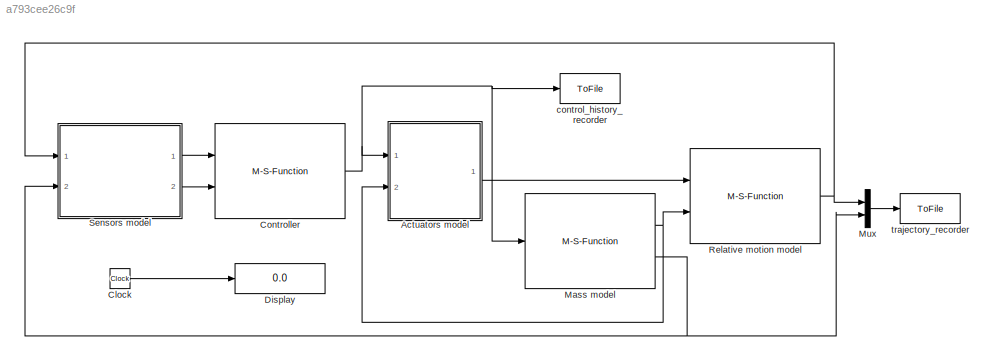
MODEL slx_a793cee26c9f
KIND model
CONFIG AbsTol = auto
CONFIG FixedStep = auto
CONFIG MaxStep = auto
CONFIG MinStep = auto
CONFIG RelTol = 1e-3
CONFIG SampleTimeConstraint = Unconstrained
CONFIG Solver = ode45
CONFIG SolverMode = Auto
CONFIG SolverName = ode45
CONFIG StartTime = 0.0
CONFIG StopTime = 36e4
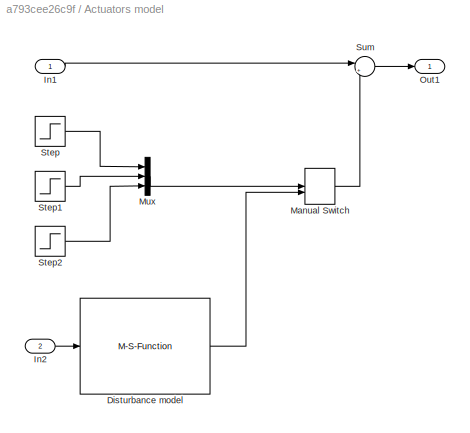
BLOCK [SubSystem] Actuators model
  Ports = [2, 1]
  RequestExecContextInheritance = off
BLOCK [M-S-Function] Actuators model/Disturbance model
  FunctionName = DiscInDisturbanceSFcn
  Parameters = SimulationScenario
  Ports = [1, 1]
BLOCK [Inport] Actuators model/In1
  IconDisplay = Port number
BLOCK [Inport] Actuators model/In2
  IconDisplay = Port number
  Port = 2
BLOCK [ManualSwitch] Actuators model/Manual Switch
BLOCK [Mux] Actuators model/Mux
  DisplayOption = bar
  Inputs = 3
  Ports = [3, 1]
BLOCK [Outport] Actuators model/Out1
  IconDisplay = Port number
BLOCK [Step] Actuators model/Step
  After = StepDist
  SampleTime = 0
  Time = StepTime
BLOCK [Step] Actuators model/Step1
  After = StepDist
  SampleTime = 0
  Time = StepTime
BLOCK [Step] Actuators model/Step2
  After = StepDist
  SampleTime = 0
  Time = StepTime
BLOCK [Sum] Actuators model/Sum
  IconShape = round
  InputSameDT = off
  Inputs = |++
  OutDataTypeStr = Inherit: Inherit via internal rule
  Ports = [2, 1]
  SaturateOnIntegerOverflow = off
BLOCK [Clock] Clock
BLOCK [M-S-Function] Controller
  FunctionName = DiscControllerSFcn
  Parameters = SimulationScenario
  Ports = [2, 1]
BLOCK [Display] Display
  Decimation = 1
  Ports = [1]
BLOCK [M-S-Function] Mass model
  FunctionName = ContMassSFcn
  Parameters = SimulationScenario
  Ports = [1, 2]
BLOCK [Mux] Mux
  DisplayOption = bar
  Inputs = 2
  Ports = [2, 1]
BLOCK [M-S-Function] Relative motion model
  FunctionName = ContRelMotSFcn
  Parameters = SimulationScenario
  Ports = [2, 1]
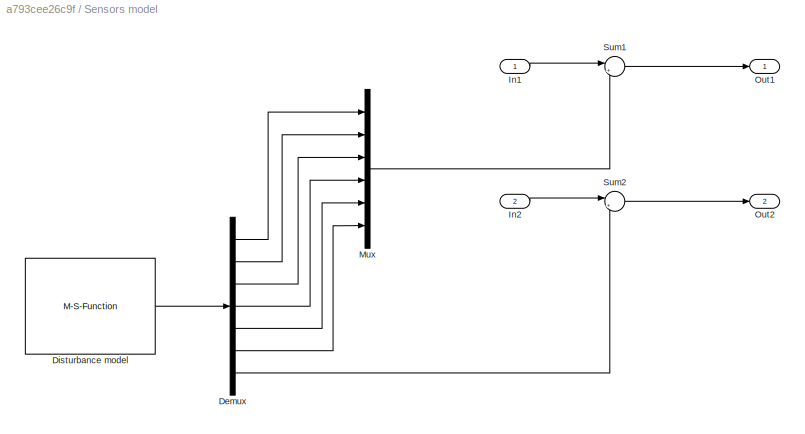
BLOCK [SubSystem] Sensors model
  Ports = [2, 2]
  RequestExecContextInheritance = off
BLOCK [Demux] Sensors model/Demux
  DisplayOption = bar
  Outputs = 7
  Ports = [1, 7]
BLOCK [M-S-Function] Sensors model/Disturbance model
  FunctionName = DiscOutDisturbanceSFcn
  Parameters = SimulationScenario
  Ports = [0, 1]
BLOCK [Inport] Sensors model/In1
  IconDisplay = Port number
BLOCK [Inport] Sensors model/In2
  IconDisplay = Port number
  Port = 2
BLOCK [Mux] Sensors model/Mux
  DisplayOption = bar
  Inputs = 6
  Ports = [6, 1]
BLOCK [Outport] Sensors model/Out1
  IconDisplay = Port number
BLOCK [Outport] Sensors model/Out2
  IconDisplay = Port number
  Port = 2
BLOCK [Sum] Sensors model/Sum1
  IconShape = round
  InputSameDT = off
  Inputs = |++
  OutDataTypeStr = Inherit: Inherit via internal rule
  Ports = [2, 1]
  SaturateOnIntegerOverflow = off
BLOCK [Sum] Sensors model/Sum2
  IconShape = round
  InputSameDT = off
  Inputs = |++
  OutDataTypeStr = Inherit: Inherit via internal rule
  Ports = [2, 1]
  SaturateOnIntegerOverflow = off
BLOCK [ToFile] control_history_recorder
  AttributesFormatString = %<SampleTime>
  Filename = control.mat
  MatrixName = ControlHistory
  Ports = [1]
  SampleTime = 300
  SaveFormat = Timeseries
BLOCK [ToFile] trajectory_recorder
  AttributesFormatString = %<SampleTime>
  Filename = output.mat
  MatrixName = OutputHistory
  Ports = [1]
  SampleTime = 300
  SaveFormat = Timeseries
LINE Actuators model/Disturbance model:1 -> Actuators model/Manual Switch:2
LINE Actuators model/In1:1 -> Actuators model/Sum:1
LINE Actuators model/In2:1 -> Actuators model/Disturbance model:1
LINE Actuators model/Manual Switch:1 -> Actuators model/Sum:2
LINE Actuators model/Mux:1 -> Actuators model/Manual Switch:1
LINE Actuators model/Step1:1 -> Actuators model/Mux:2
LINE Actuators model/Step2:1 -> Actuators model/Mux:3
LINE Actuators model/Step:1 -> Actuators model/Mux:1
LINE Actuators model/Sum:1 -> Actuators model/Out1:1
LINE Actuators model:1 -> Relative motion model:1
LINE Clock:1 -> Display:1
NET Controller:1 -> Actuators model:1, Mass model:1, control_history_recorder:1
NET Mass model:1 -> Actuators model:2, Relative motion model:2
NET Mass model:2 -> Mux:2, Sensors model:2
LINE Mux:1 -> trajectory_recorder:1
NET Relative motion model:1 -> Mux:1, Sensors model:1
LINE Sensors model/Demux:1 -> Sensors model/Mux:1
LINE Sensors model/Demux:2 -> Sensors model/Mux:2
LINE Sensors model/Demux:3 -> Sensors model/Mux:3
LINE Sensors model/Demux:4 -> Sensors model/Mux:4
LINE Sensors model/Demux:5 -> Sensors model/Mux:5
LINE Sensors model/Demux:6 -> Sensors model/Mux:6
LINE Sensors model/Demux:7 -> Sensors model/Sum2:2
LINE Sensors model/Disturbance model:1 -> Sensors model/Demux:1
LINE Sensors model/In1:1 -> Sensors model/Sum1:1
LINE Sensors model/In2:1 -> Sensors model/Sum2:1
LINE Sensors model/Mux:1 -> Sensors model/Sum1:2
LINE Sensors model/Sum1:1 -> Sensors model/Out1:1
LINE Sensors model/Sum2:1 -> Sensors model/Out2:1
LINE Sensors model:1 -> Controller:1
LINE Sensors model:2 -> Controller:2
note: NET lines group one-source signal fan-out (src -> all destinations, sorted); 1:1 wires keep LINE
